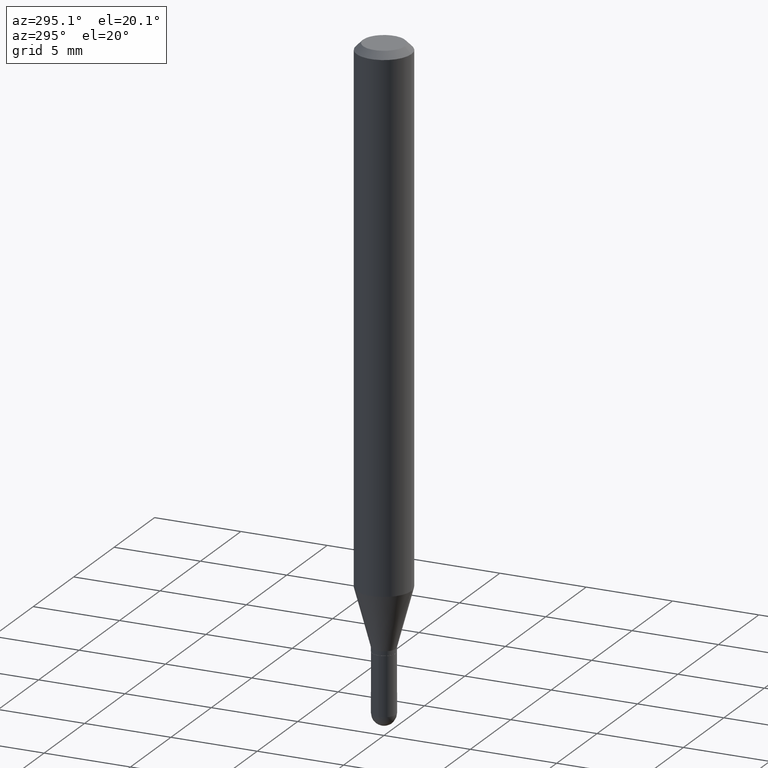
[diagram: clean part render]
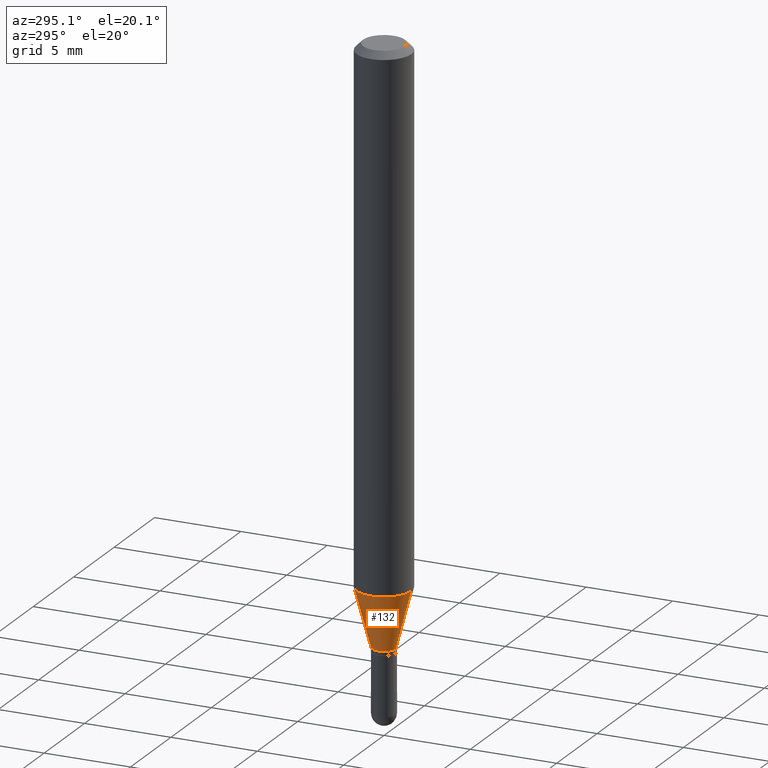
[diagram: same view with one face highlighted and labeled with its STEP entity id]
A machine part, auxiliary view. The second image highlights one B-rep face of the part: STEP entity #132.
In plain terms, the highlighted conical surface has half-angle 15 deg.
Its self-contained STEP definition (entity closure, byte-faithful):
#17 = CIRCLE ( 'NONE', #281, 0.06250000000000000000 ) ;
#31 = EDGE_CURVE ( 'NONE', #185, #495, #222, .T. ) ;
#33 = CARTESIAN_POINT ( 'NONE',  ( -1.885399922974961558E-16, -0.02700000000000455855, -1.328000000000000069 ) ) ;
#40 = VERTEX_POINT ( 'NONE', #33 ) ;
#45 = VERTEX_POINT ( 'NONE', #208 ) ;
#64 = DIRECTION ( 'NONE',  ( -2.445459900832520260E-29, 3.491494091814953500E-15, 1.000000000000000000 ) ) ;
#89 = LINE ( 'NONE', #446, #164 ) ;
#105 = EDGE_CURVE ( 'NONE', #185, #40, #252, .T. ) ;
#107 = CARTESIAN_POINT ( 'NONE',  ( 1.918465386552589476E-16, 0.02699999999999528819, -1.328000000000000069 ) ) ;
#128 = DIRECTION ( 'NONE',  ( -6.982962677686265922E-15, -1.000000000000000000, 0.000000000000000000 ) ) ;
#132 = ADVANCED_FACE ( 'NONE', ( #203 ), #459, .T. ) ;
#146 = EDGE_CURVE ( 'NONE', #40, #45, #89, .T. ) ;
#164 = VECTOR ( 'NONE', #400, 39.37007874015748854 ) ;
#168 = VECTOR ( 'NONE', #264, 39.37007874015748854 ) ;
#185 = VERTEX_POINT ( 'NONE', #452 ) ;
#193 = DIRECTION ( 'NONE',  ( -2.445459900832520260E-29, 3.491494091814953500E-15, 1.000000000000000000 ) ) ;
#203 = FACE_OUTER_BOUND ( 'NONE', #426, .T. ) ;
#205 = DIRECTION ( 'NONE',  ( -6.982962677686265922E-15, -1.000000000000000000, 0.000000000000000000 ) ) ;
#208 = CARTESIAN_POINT ( 'NONE',  ( -4.364351673553625802E-16, -0.06250000000000419109, -1.195512196331305121 ) ) ;
#217 = CARTESIAN_POINT ( 'NONE',  ( 2.923577137084422367E-29, -4.174123770183471873E-15, -1.195512196331305343 ) ) ;
#221 = ORIENTED_EDGE ( 'NONE', *, *, #31, .F. ) ;
#222 = LINE ( 'NONE', #107, #168 ) ;
#252 = CIRCLE ( 'NONE', #324, 0.02699999999999992337 ) ;
#259 = CARTESIAN_POINT ( 'NONE',  ( 3.247570748305587129E-29, -4.636704153930258690E-15, -1.328000000000000069 ) ) ;
#264 = DIRECTION ( 'NONE',  ( 1.839019923739603471E-15, 0.2588190451025254024, 0.9659258262890669799 ) ) ;
#270 = AXIS2_PLACEMENT_3D ( 'NONE', #359, #402, #128 ) ;
#281 = AXIS2_PLACEMENT_3D ( 'NONE', #217, #193, #432 ) ;
#297 = ORIENTED_EDGE ( 'NONE', *, *, #146, .T. ) ;
#303 = ORIENTED_EDGE ( 'NONE', *, *, #322, .F. ) ;
#310 = CARTESIAN_POINT ( 'NONE',  ( 4.440892098500915082E-16, 0.06249999999999580197, -1.195512196331305788 ) ) ;
#322 = EDGE_CURVE ( 'NONE', #495, #45, #17, .T. ) ;
#324 = AXIS2_PLACEMENT_3D ( 'NONE', #259, #64, #205 ) ;
#344 = ORIENTED_EDGE ( 'NONE', *, *, #105, .T. ) ;
#359 = CARTESIAN_POINT ( 'NONE',  ( 3.247570748305587129E-29, -4.636704153930258690E-15, -1.328000000000000069 ) ) ;
#400 = DIRECTION ( 'NONE',  ( -1.807323732225333295E-15, -0.2588190451025186301, 0.9659258262890687563 ) ) ;
#402 = DIRECTION ( 'NONE',  ( -2.445459900832520260E-29, 3.491494091814953500E-15, 1.000000000000000000 ) ) ;
#426 = EDGE_LOOP ( 'NONE', ( #221, #344, #297, #303 ) ) ;
#432 = DIRECTION ( 'NONE',  ( -6.982962677686265922E-15, -1.000000000000000000, 4.370956789862821150E-15 ) ) ;
#446 = CARTESIAN_POINT ( 'NONE',  ( -1.885399922974961558E-16, -0.02700000000000455855, -1.328000000000000069 ) ) ;
#452 = CARTESIAN_POINT ( 'NONE',  ( 3.179678742526754374E-16, 0.02699999999999528819, -1.328000000000000069 ) ) ;
#459 = CONICAL_SURFACE ( 'NONE', #270, 0.02699999999999992337, 0.2617993877991507956 ) ;
#495 = VERTEX_POINT ( 'NONE', #310 ) ;